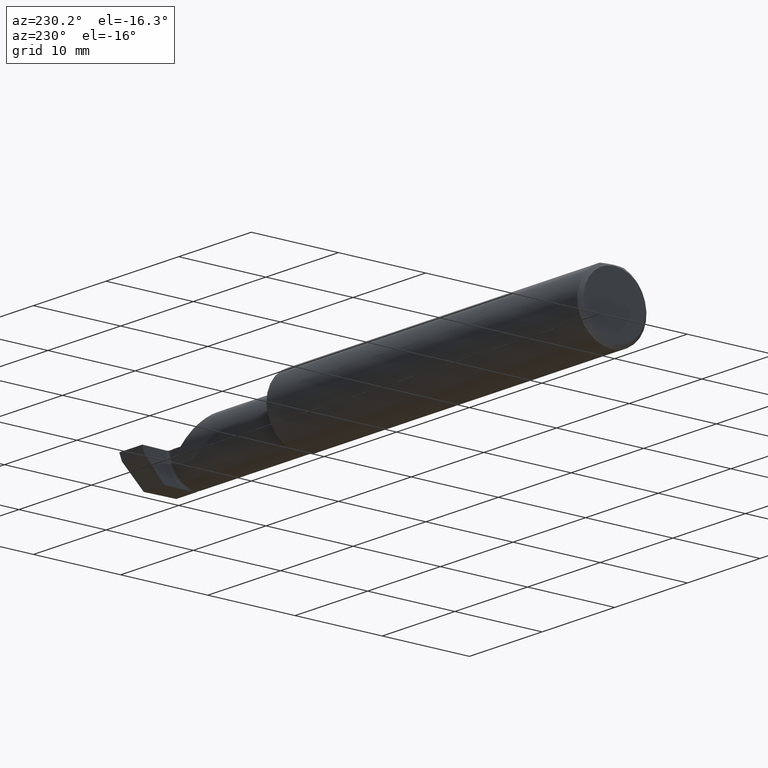
[diagram: clean part render]
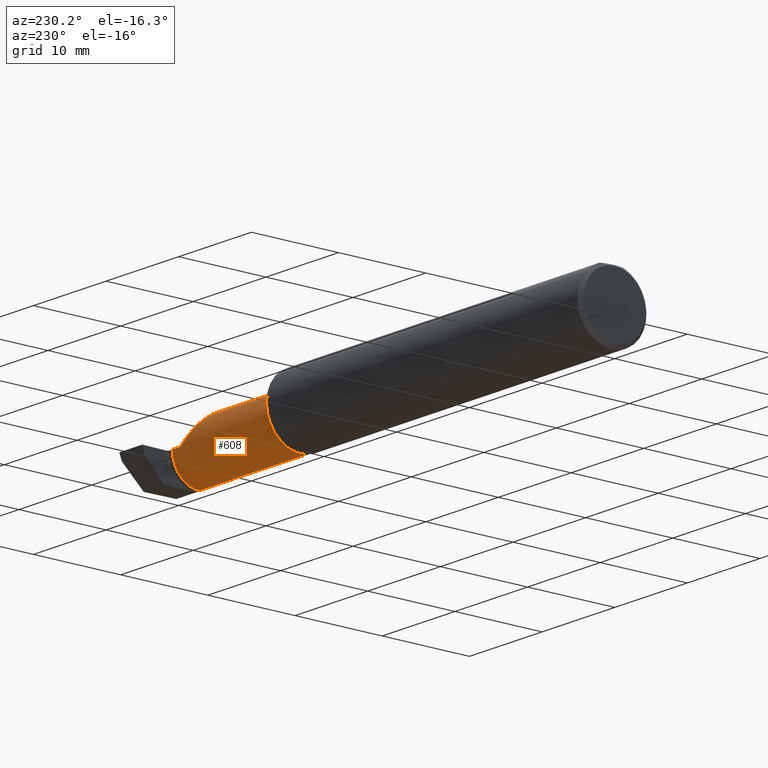
[diagram: same view with one face highlighted and labeled with its STEP entity id]
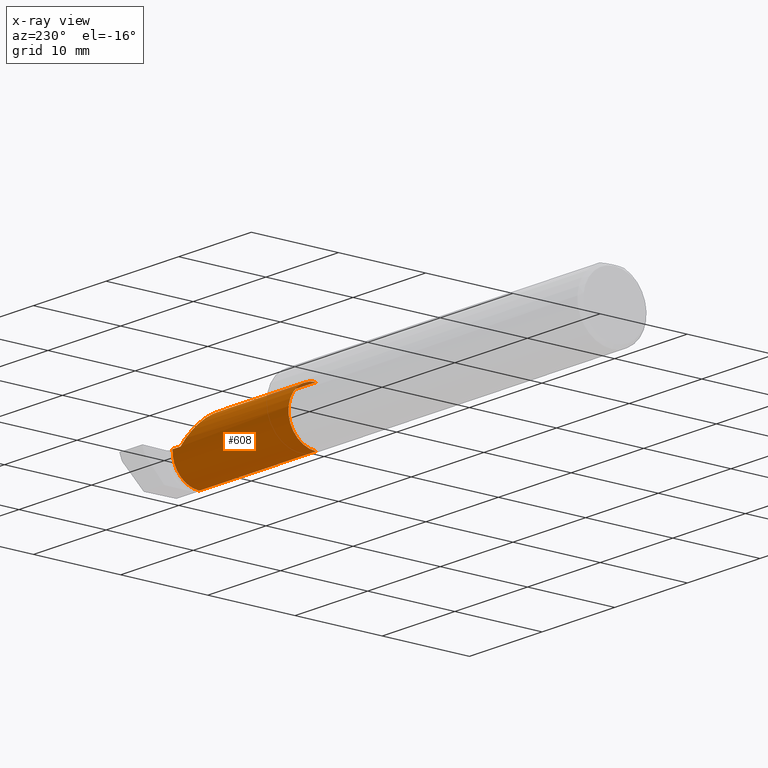
[diagram: x-ray of the same camera — body ghosted, the highlighted face saturated]
A machine part, auxiliary view. The second image highlights one B-rep face of the part: STEP entity #608.
The next image is the same camera in x-ray: the body ghosted, the highlighted face saturated — about 1% of this face is hidden behind the body in this view.
In plain terms, the highlighted cylindrical surface (edge-blend (fillet) strip) has radius 3.175 mm, axis along (-1, -0, -0).
Its self-contained STEP definition (entity closure, byte-faithful):
#2 = CARTESIAN_POINT ( 'NONE',  ( 2.357927933661451370, -0.08909999999999987375, -0.1249999999999999584 ) ) ;
#4 = CARTESIAN_POINT ( 'NONE',  ( 2.185000000000000941, -0.01587669529663685714, 0.1250000000000000278 ) ) ;
#12 = EDGE_CURVE ( 'NONE', #756, #678, #632, .T. ) ;
#48 = CARTESIAN_POINT ( 'NONE',  ( 2.356699645791081377, -0.006531045806863687922, -0.09420083778622496962 ) ) ;
#49 = FACE_OUTER_BOUND ( 'NONE', #652, .T. ) ;
#60 = CARTESIAN_POINT ( 'NONE',  ( 1.699999999999999956, 0.03590000000000001523, 9.797174393178832313E-17 ) ) ;
#64 = DIRECTION ( 'NONE',  ( 1.000000000000000000, 0.000000000000000000, 0.000000000000000000 ) ) ;
#65 = CARTESIAN_POINT ( 'NONE',  ( 1.699999999999999956, -0.08909999999999998477, 0.1250000000000000000 ) ) ;
#68 = CARTESIAN_POINT ( 'NONE',  ( 2.185000000000000941, -0.08909999999999998477, 0.1250000000000000000 ) ) ;
#112 = CARTESIAN_POINT ( 'NONE',  ( 2.356937760839208806, -0.01296371943593423171, -0.09947414705155963044 ) ) ;
#179 = VERTEX_POINT ( 'NONE', #2 ) ;
#203 = CARTESIAN_POINT ( 'NONE',  ( 2.357935932481203256, -0.08088815134241841842, -0.1250000000000000000 ) ) ;
#204 = DIRECTION ( 'NONE',  ( -1.000000000000000000, -0.000000000000000000, -0.000000000000000000 ) ) ;
#222 = VERTEX_POINT ( 'NONE', #649 ) ;
#243 = DIRECTION ( 'NONE',  ( 0.000000000000000000, 0.000000000000000000, 1.000000000000000000 ) ) ;
#283 = VERTEX_POINT ( 'NONE', #903 ) ;
#284 = CARTESIAN_POINT ( 'NONE',  ( 2.357927933661451370, -0.08909999999999987375, -0.1249999999999999584 ) ) ;
#300 = CARTESIAN_POINT ( 'NONE',  ( 2.357413881692775881, -0.03375268131974260705, -0.1123775495224691306 ) ) ;
#305 = VECTOR ( 'NONE', #320, 39.37007874015748143 ) ;
#308 = CARTESIAN_POINT ( 'NONE',  ( 2.354252805042528873, 0.03186648820666731358, -0.03255481264358844884 ) ) ;
#320 = DIRECTION ( 'NONE',  ( -1.000000000000000000, -0.000000000000000000, -0.000000000000000000 ) ) ;
#321 = CARTESIAN_POINT ( 'NONE',  ( 1.724999999999999867, -0.08909999999999998477, 0.000000000000000000 ) ) ;
#333 = DIRECTION ( 'NONE',  ( -1.000000000000000000, -0.000000000000000000, -0.000000000000000000 ) ) ;
#361 = ORIENTED_EDGE ( 'NONE', *, *, #703, .F. ) ;
#368 = CARTESIAN_POINT ( 'NONE',  ( 2.353320431869042384, 0.03589999999687625704, -0.008254785922798185682 ) ) ;
#402 = CARTESIAN_POINT ( 'NONE',  ( 2.310000000000000053, 0.03589999999999998748, 2.326828918379970872E-17 ) ) ;
#411 = EDGE_CURVE ( 'NONE', #222, #639, #518, .T. ) ;
#483 = VECTOR ( 'NONE', #819, 39.37007874015748143 ) ;
#518 = CIRCLE ( 'NONE', #943, 0.1250000000000000000 ) ;
#522 = ORIENTED_EDGE ( 'NONE', *, *, #595, .T. ) ;
#549 = CARTESIAN_POINT ( 'NONE',  ( 2.355980038841162472, 0.01018321666307163073, -0.07639068106861100771 ) ) ;
#552 = DIRECTION ( 'NONE',  ( 0.000000000000000000, 0.000000000000000000, 1.000000000000000000 ) ) ;
#571 = LINE ( 'NONE', #65, #305 ) ;
#573 = VECTOR ( 'NONE', #64, 39.37007874015748143 ) ;
#580 = ORIENTED_EDGE ( 'NONE', *, *, #689, .T. ) ;
#595 = EDGE_CURVE ( 'NONE', #179, #639, #883, .T. ) ;
#608 = ADVANCED_FACE ( 'NONE', ( #49 ), #965, .T. ) ;
#624 = CARTESIAN_POINT ( 'NONE',  ( 1.699999999999999956, -0.08909999999999995701, -0.1250000000000000000 ) ) ;
#627 = CARTESIAN_POINT ( 'NONE',  ( 2.355199529268673597, 0.02321674354949746638, -0.05546327950794793793 ) ) ;
#632 = LINE ( 'NONE', #60, #573 ) ;
#633 = CARTESIAN_POINT ( 'NONE',  ( 2.353623903750155399, 0.03509016320311791198, -0.01641677370544728301 ) ) ;
#634 = CARTESIAN_POINT ( 'NONE',  ( 1.699999999999999956, -0.08909999999999998477, 0.000000000000000000 ) ) ;
#639 = VERTEX_POINT ( 'NONE', #671 ) ;
#649 = CARTESIAN_POINT ( 'NONE',  ( 1.724999999999999867, -0.08909999999999998477, 0.1250000000000000000 ) ) ;
#652 = EDGE_LOOP ( 'NONE', ( #876, #522, #795, #361, #580, #1088 ) ) ;
#671 = CARTESIAN_POINT ( 'NONE',  ( 1.724999999999999867, -0.08909999999999995701, -0.1250000000000000000 ) ) ;
#678 = VERTEX_POINT ( 'NONE', #996 ) ;
#689 = EDGE_CURVE ( 'NONE', #283, #756, #854, .T. ) ;
#703 = EDGE_CURVE ( 'NONE', #283, #222, #571, .T. ) ;
#717 = CARTESIAN_POINT ( 'NONE',  ( 2.357286348692388511, -0.02656894571755021028, -0.1085435691328176522 ) ) ;
#756 = VERTEX_POINT ( 'NONE', #1077 ) ;
#781 = CARTESIAN_POINT ( 'NONE',  ( 2.357761306314715810, -0.05683682831956003018, -0.1210382003670291279 ) ) ;
#795 = ORIENTED_EDGE ( 'NONE', *, *, #411, .F. ) ;
#796 = CARTESIAN_POINT ( 'NONE',  ( 2.355477052413197825, 0.01933946668586121811, -0.06271822167423647676 ) ) ;
#797 = AXIS2_PLACEMENT_3D ( 'NONE', #634, #204, #552 ) ;
#802 = CARTESIAN_POINT ( 'NONE',  ( 2.356220276096291588, 0.005002318410853698674, -0.08268121737055655895 ) ) ;
#819 = DIRECTION ( 'NONE',  ( -1.000000000000000000, -0.000000000000000000, -0.000000000000000000 ) ) ;
#854 =( BOUNDED_CURVE ( )  B_SPLINE_CURVE ( 3, ( #68, #4, #913, #402 ),
 .UNSPECIFIED., .F., .T. ) 
 B_SPLINE_CURVE_WITH_KNOTS ( ( 4, 4 ),
 ( 0.000000000000000000, 1.570796326794896558 ),
 .UNSPECIFIED. ) 
 CURVE ( )  GEOMETRIC_REPRESENTATION_ITEM ( )  RATIONAL_B_SPLINE_CURVE ( ( 1.000000000000000000, 0.8047378541243649375, 0.8047378541243649375, 1.000000000000000000 ) ) 
 REPRESENTATION_ITEM ( '' )  );
#876 = ORIENTED_EDGE ( 'NONE', *, *, #993, .T. ) ;
#883 = LINE ( 'NONE', #624, #483 ) ;
#903 = CARTESIAN_POINT ( 'NONE',  ( 2.185000000000000941, -0.08909999999999998477, 0.1250000000000000000 ) ) ;
#913 = CARTESIAN_POINT ( 'NONE',  ( 2.236776695296637474, 0.03590000000000000829, 0.07322330470336313457 ) ) ;
#936 = B_SPLINE_CURVE_WITH_KNOTS ( 'NONE', 3,
 ( #968, #368, #633, #308, #973, #627, #796, #549, #802, #48, #112, #717, #300, #1058, #781, #1042, #203, #284 ),
 .UNSPECIFIED., .F., .F.,
 ( 4, 2, 2, 2, 2, 2, 2, 2, 4 ),
 ( 0.000000000000000000, 0.0006253447678816990984, 0.001250689535763398197, 0.001876034303645097295, 0.002501379071526796394, 0.003126723839408495492, 0.003752068607290194591, 0.004377413375171893689, 0.005002758143053592788 ),
 .UNSPECIFIED. ) ;
#943 = AXIS2_PLACEMENT_3D ( 'NONE', #321, #333, #243 ) ;
#965 = CYLINDRICAL_SURFACE ( 'NONE', #797, 0.1250000000000000000 ) ;
#968 = CARTESIAN_POINT ( 'NONE',  ( 2.353000000000368797, 0.03589999999963103261, 2.341593656821230351E-17 ) ) ;
#973 = CARTESIAN_POINT ( 'NONE',  ( 2.354579559125110411, 0.02945989714467837223, -0.04043237619017241852 ) ) ;
#993 = EDGE_CURVE ( 'NONE', #678, #179, #936, .T. ) ;
#996 = CARTESIAN_POINT ( 'NONE',  ( 2.353000000000368797, 0.03589999999963103261, 2.341593656821230351E-17 ) ) ;
#1042 = CARTESIAN_POINT ( 'NONE',  ( 2.357913702353788388, -0.07279442226377040581, -0.1241985761981932029 ) ) ;
#1058 = CARTESIAN_POINT ( 'NONE',  ( 2.357650593348733725, -0.04888461107347834983, -0.1186371013437936689 ) ) ;
#1077 = CARTESIAN_POINT ( 'NONE',  ( 2.310000000000000053, 0.03589999999999998748, 2.326828918379970872E-17 ) ) ;
#1088 = ORIENTED_EDGE ( 'NONE', *, *, #12, .T. ) ;